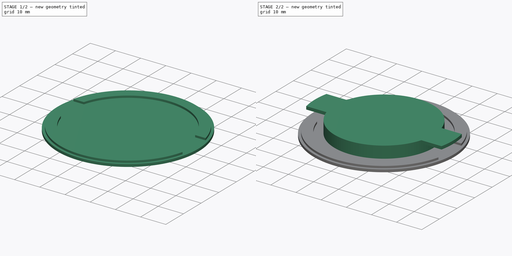
[diagram: build sequence overview — one tinted view per stage of 2, left to right]
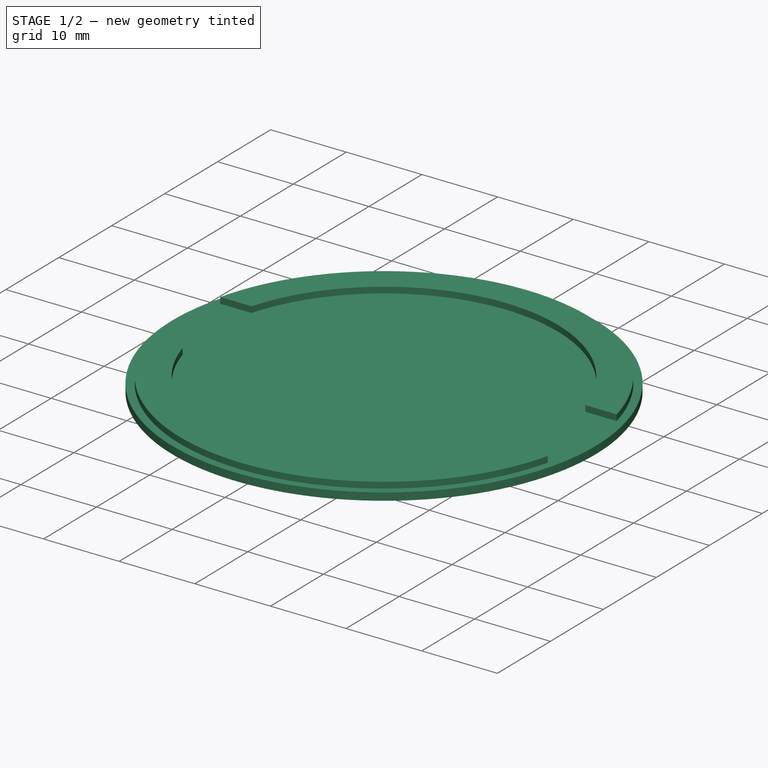
[diagram: stage 1 of 2 — iso view after this stage's code; geometry added in this stage tinted green]
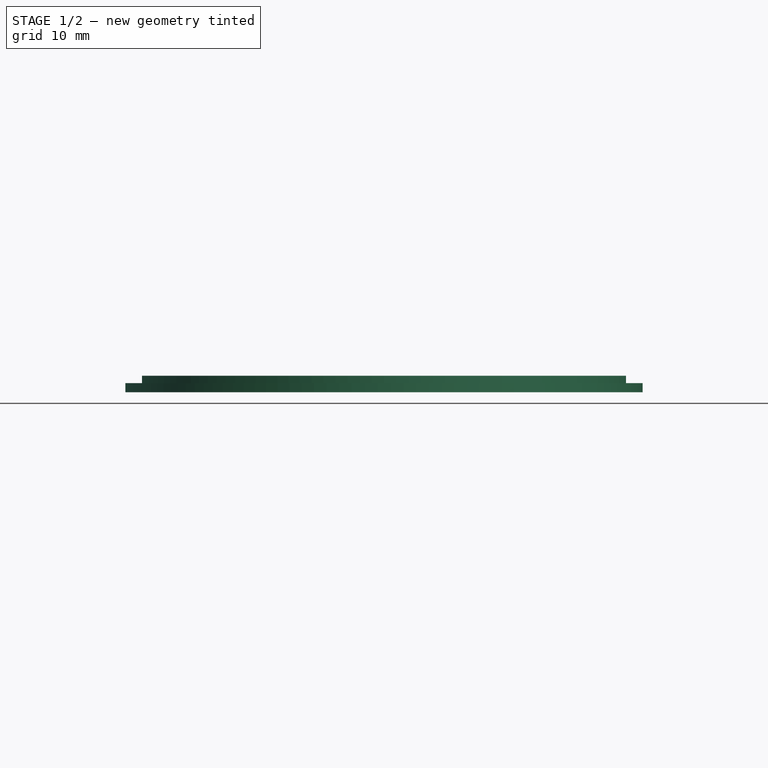
[diagram: stage 1 of 2 — front view after this stage's code; geometry added in this stage tinted green]
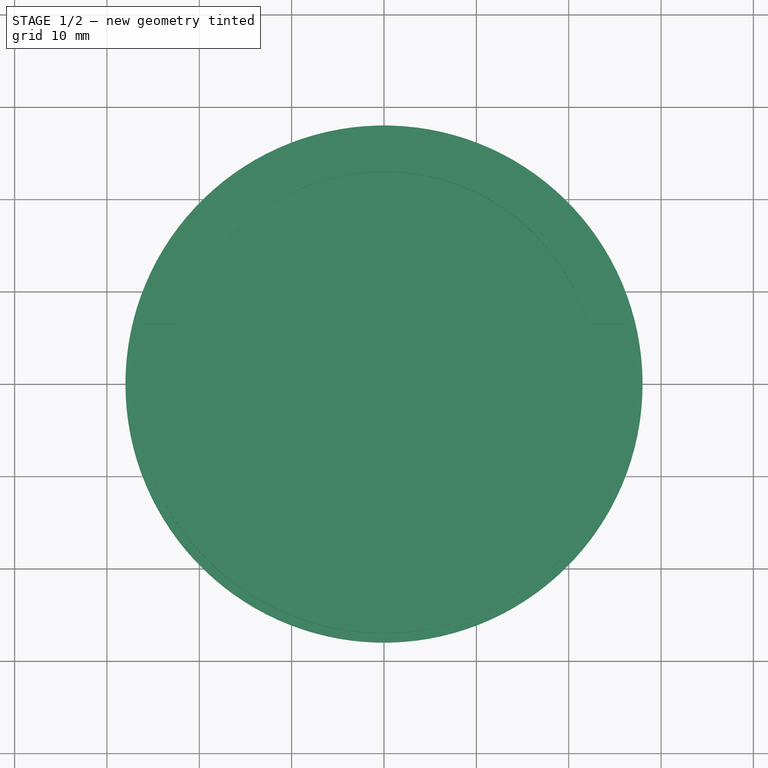
[diagram: stage 1 of 2 — top view after this stage's code; geometry added in this stage tinted green]
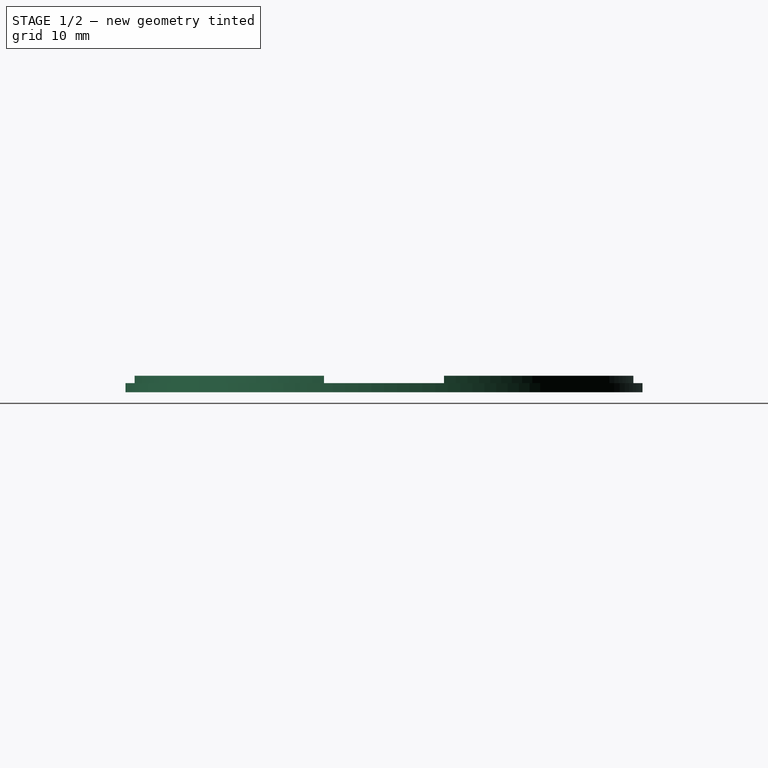
[diagram: stage 1 of 2 — right view after this stage's code; geometry added in this stage tinted green]
FCSTD DOCUMENT  (FreeCAD 0.16R6712 (Git))
Label: persely
License: All rights reserved
LicenseURL: http://en.wikipedia.org/wiki/All_rights_reserved
objects: Sketcher::SketchObject×4, PartDesign::Pad×4
note: 12 computed .brp shape members not serialized (recipe doc carries the construction recipe); baked Part::Feature solids carry a one-line shape summary decoded from their .brp

FEATURE [Sketcher::SketchObject] Sketch
  sketch-geometry (1):
    g0: Circle CenterX=0 CenterY=0 CenterZ=0 NormalX=0 NormalY=0 NormalZ=1 Radius=28
  constraints (2):
    c: Coincident(g0,g-1)
    c: Radius(g0) = 28
FEATURE [PartDesign::Pad] Pad
  Length = 1
  Length2 = 100
  Sketch = -> Sketch
  Type = 0
FEATURE [Sketcher::SketchObject] Sketch001
  Placement = pos=(0,0,1) rot=(0,0,1;0rad)
  Support = -> Pad [Face3]
  sketch-geometry (10):
    g0: ArcOfCircle CenterX=0 CenterY=0 CenterZ=0 NormalX=0 NormalY=0 NormalZ=1 Radius=27 StartAngle=0.243129 EndAngle=2.89846
    g1: ArcOfCircle CenterX=0 CenterY=0 CenterZ=0 NormalX=0 NormalY=0 NormalZ=1 Radius=27 StartAngle=3.38472 EndAngle=6.04006
    g2: ArcOfCircle CenterX=0 CenterY=0 CenterZ=0 NormalX=0 NormalY=0 NormalZ=1 Radius=23 StartAngle=0.286513 EndAngle=2.85508
    g3: ArcOfCircle CenterX=0 CenterY=0 CenterZ=0 NormalX=0 NormalY=0 NormalZ=1 Radius=23 StartAngle=3.42811 EndAngle=5.99667
    g4: LineSegment StartX=-26.2059 StartY=6.5 StartZ=0 EndX=-22.0624 EndY=6.5 EndZ=0
    g5: LineSegment StartX=-26.2059 StartY=-6.5 StartZ=0 EndX=-22.0624 EndY=-6.5 EndZ=0
    g6: LineSegment StartX=22.0624 StartY=-6.5 StartZ=0 EndX=26.2059 EndY=-6.5 EndZ=0
    g7: LineSegment StartX=22.0624 StartY=6.5 StartZ=0 EndX=26.2059 EndY=6.5 EndZ=0
    g8: LineSegment [constr] StartX=-22.0624 StartY=6.5 StartZ=0 EndX=22.0624 EndY=6.5 EndZ=0
    g9: LineSegment [constr] StartX=-22.0624 StartY=-6.5 StartZ=0 EndX=22.0624 EndY=-6.5 EndZ=0
  constraints (28):
    c: Coincident(g0,g-1)
    c: Coincident(g1,g-1)
    c: Radius(g0) = 27
    c: Symmetric(g0,g1,g-1)
    c: DistanceY(g1,g0) = 13
    c: Symmetric(g0,g1,g-1)
    c: Coincident(g3,g-1)
    c: Radius(g2) = 23
    c: Equal(g2,g3)
    c: Coincident(g4,g0)
    c: Coincident(g4,g2)
    c: Horizontal(g4)
    c: Coincident(g5,g1)
    c: Coincident(g5,g3)
    c: Horizontal(g5)
    c: Coincident(g6,g3)
    c: Coincident(g6,g1)
    c: Coincident(g7,g2)
    c: Coincident(g7,g0)
    c: Horizontal(g7)
    c: Horizontal(g6)
    c: Coincident(g8,g2)
    c: Coincident(g8,g2)
    c: Horizontal(g8)
    c: Coincident(g9,g3)
    c: Coincident(g9,g3)
    c: Horizontal(g9)
    c: Coincident(g2,g-1)
FEATURE [PartDesign::Pad] Pad001
  Length = 0.8
  Length2 = 100
  Sketch = -> Sketch001
  Type = 0
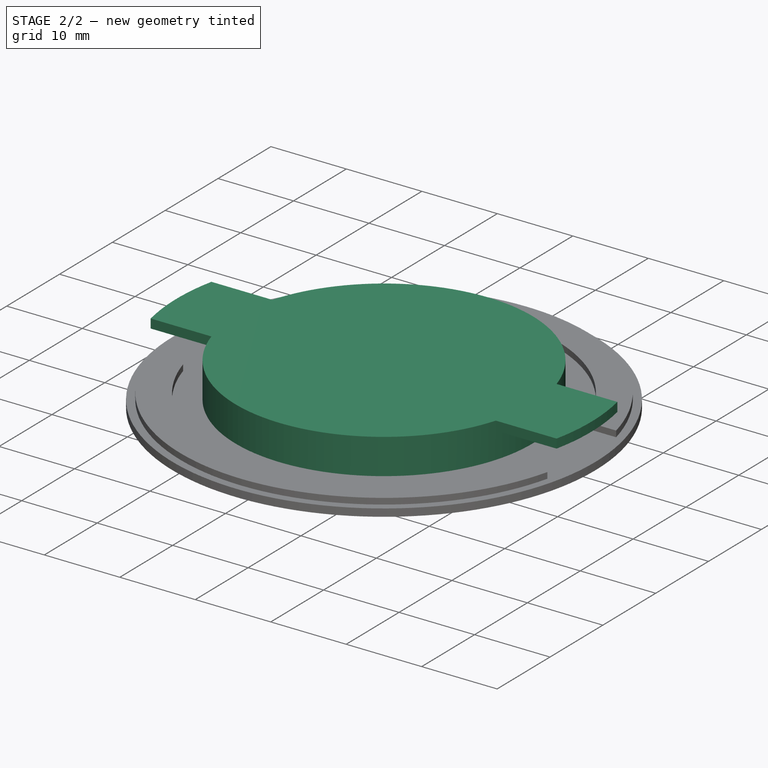
[diagram: stage 2 of 2 — iso view after this stage's code; geometry added in this stage tinted green]
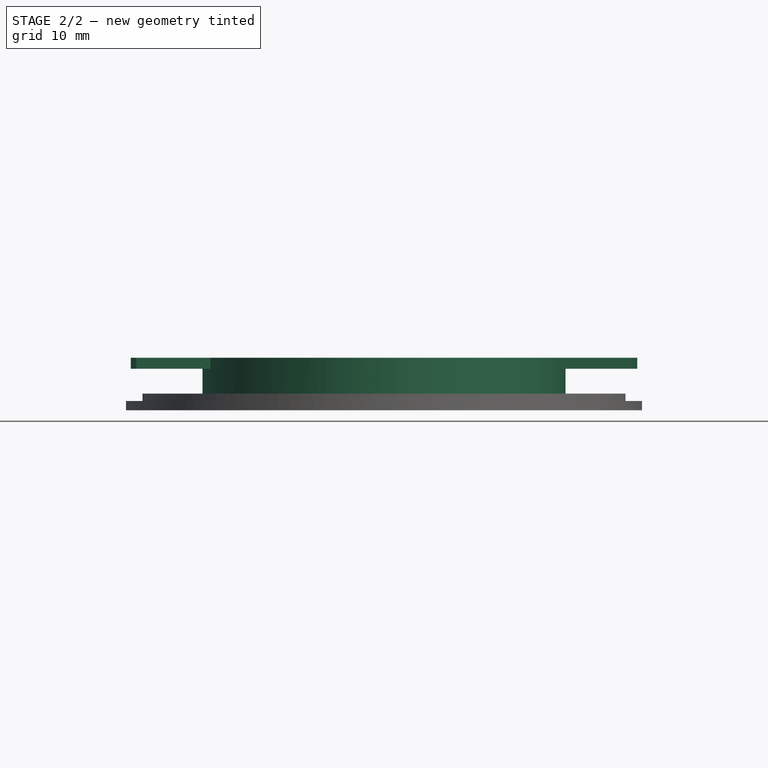
[diagram: stage 2 of 2 — front view after this stage's code; geometry added in this stage tinted green]
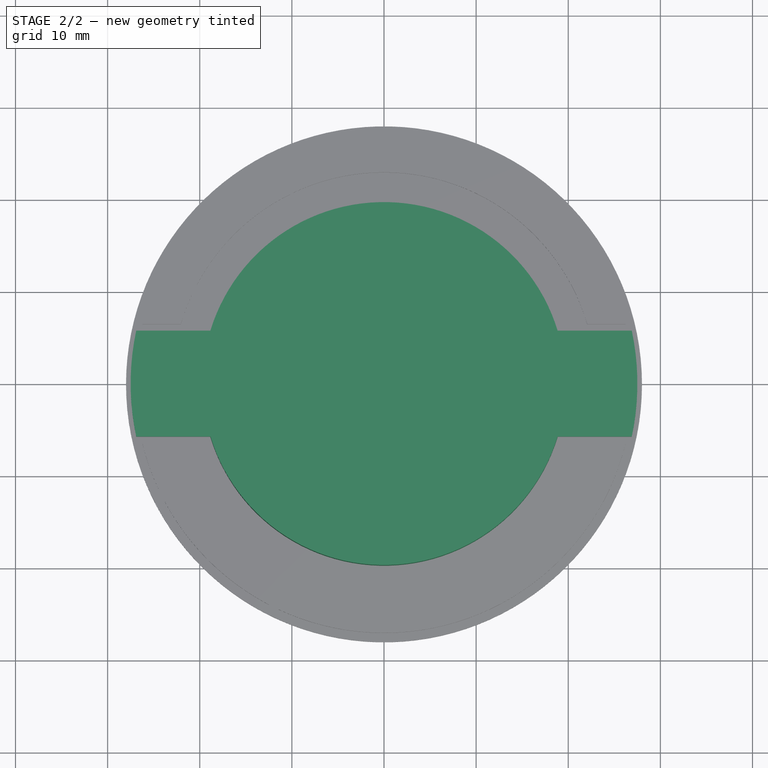
[diagram: stage 2 of 2 — top view after this stage's code; geometry added in this stage tinted green]
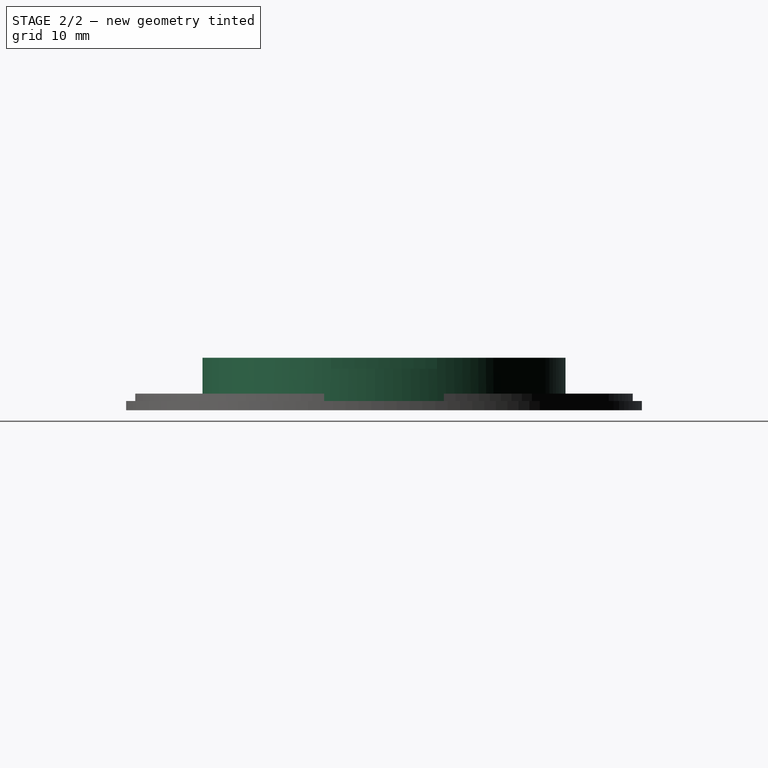
[diagram: stage 2 of 2 — right view after this stage's code; geometry added in this stage tinted green]
FEATURE [Sketcher::SketchObject] Sketch002
  Placement = pos=(0,0,1) rot=(0,0,1;0rad)
  Support = -> Pad001 [Face3]
  sketch-geometry (1):
    g0: Circle CenterX=0 CenterY=0 CenterZ=0 NormalX=0 NormalY=0 NormalZ=1 Radius=19.7
  constraints (2):
    c: Coincident(g0,g-1)
    c: Radius(g0) = 19.7
FEATURE [PartDesign::Pad] Pad002
  Length = 3.5
  Length2 = 100
  Sketch = -> Sketch002
  Type = 0
FEATURE [Sketcher::SketchObject] Sketch003
  Placement = pos=(0,0,4.5) rot=(0,0,1;0rad)
  Support = -> Pad002 [Face14]
  sketch-geometry (10):
    g0: LineSegment [constr] StartX=26.8921 StartY=5.75 StartZ=0 EndX=26.8921 EndY=-5.75 EndZ=0
    g1: LineSegment [constr] StartX=-26.8921 StartY=-5.75 StartZ=0 EndX=-26.8921 EndY=5.75 EndZ=0
    g2: ArcOfCircle CenterX=0 CenterY=0 CenterZ=0 NormalX=0 NormalY=0 NormalZ=1 Radius=27.5 StartAngle=2.93095 EndAngle=3.35224
    g3: ArcOfCircle CenterX=0 CenterY=0 CenterZ=0 NormalX=0 NormalY=0 NormalZ=1 Radius=27.5 StartAngle=6.07254 EndAngle=6.49383
    g4: ArcOfCircle CenterX=0 CenterY=0 CenterZ=0 NormalX=0 NormalY=0 NormalZ=1 Radius=19.7 StartAngle=0.29619 EndAngle=2.8454
    g5: ArcOfCircle CenterX=0 CenterY=0 CenterZ=0 NormalX=0 NormalY=0 NormalZ=1 Radius=19.7 StartAngle=3.43778 EndAngle=5.987
    g6: LineSegment StartX=-26.8921 StartY=5.75 StartZ=0 EndX=-18.8422 EndY=5.75 EndZ=0
    g7: LineSegment StartX=-26.8921 StartY=-5.75 StartZ=0 EndX=-18.8422 EndY=-5.75 EndZ=0
    g8: LineSegment StartX=18.8422 StartY=5.75 StartZ=0 EndX=26.8921 EndY=5.75 EndZ=0
    g9: LineSegment StartX=18.8422 StartY=-5.75 StartZ=0 EndX=26.8921 EndY=-5.75 EndZ=0
  constraints (28):
    c: Vertical(g0)
    c: Vertical(g1)
    c: Symmetric(g1,g0,g-2)
    c: DistanceY(g1,g1) = 11.5
    c: Coincident(g2,g-1)
    c: Radius(g2) = 27.5
    c: Coincident(g3,g-1)
    c: Coincident(g3,g0)
    c: Coincident(g4,g-1)
    c: Coincident(g5,g-1)
    c: Equal(g5,g4)
    c: Radius(g4) = 19.7
    c: Symmetric(g4,g5,g-1)
    c: Coincident(g6,g1)
    c: Coincident(g6,g4)
    c: Horizontal(g6)
    c: Coincident(g7,g1)
    c: Coincident(g7,g5)
    c: Coincident(g8,g4)
    c: Coincident(g8,g0)
    c: Horizontal(g8)
    c: Coincident(g9,g5)
    c: Coincident(g9,g0)
    c: Horizontal(g9)
    c: Coincident(g1,g2)
    c: Coincident(g1,g2)
    c: Coincident(g0,g3)
    c: Horizontal(g7)
FEATURE [PartDesign::Pad] Pad003
  Length = 1.2
  Length2 = 100
  Sketch = -> Sketch003
  Type = 0
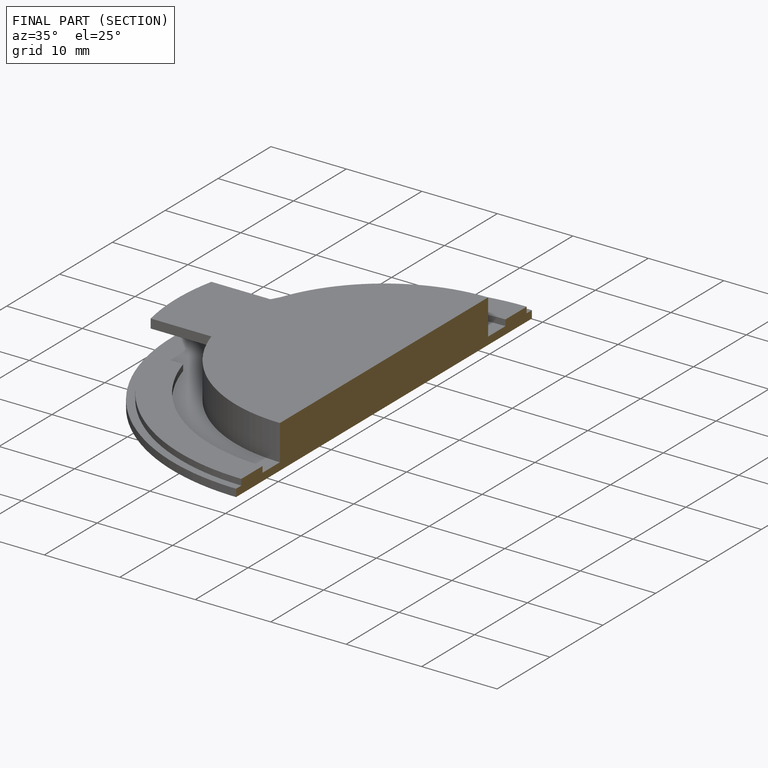
[diagram: finished part — half-section view (interior)]
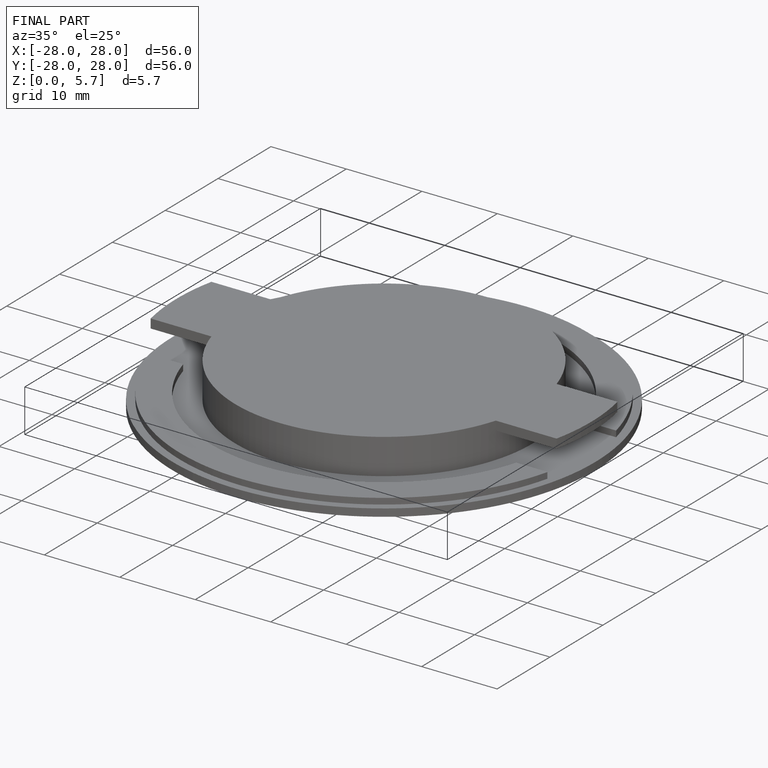
[diagram: finished part — iso view with bounding-box wireframe]
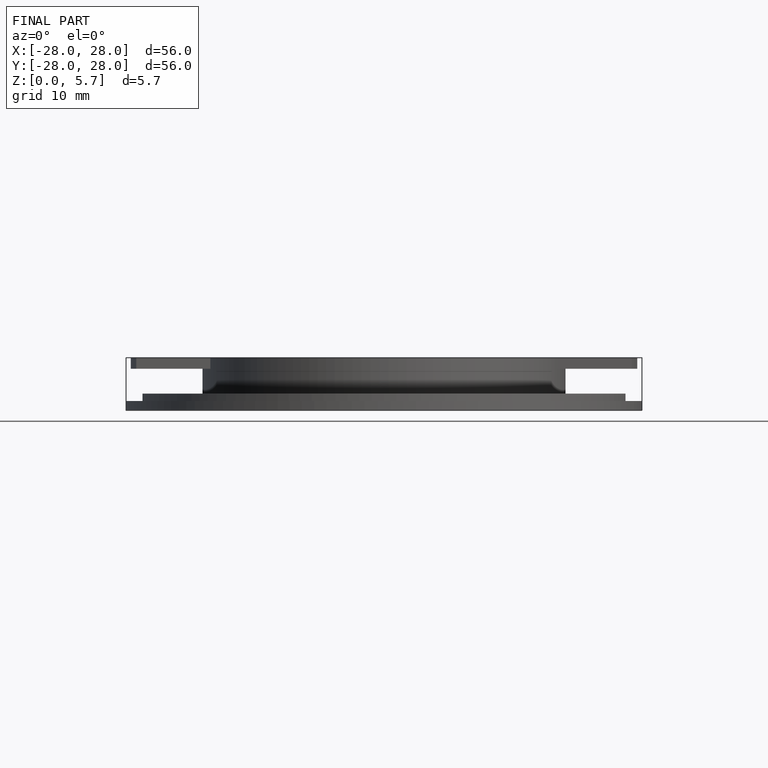
[diagram: finished part — front view with bounding-box wireframe]
